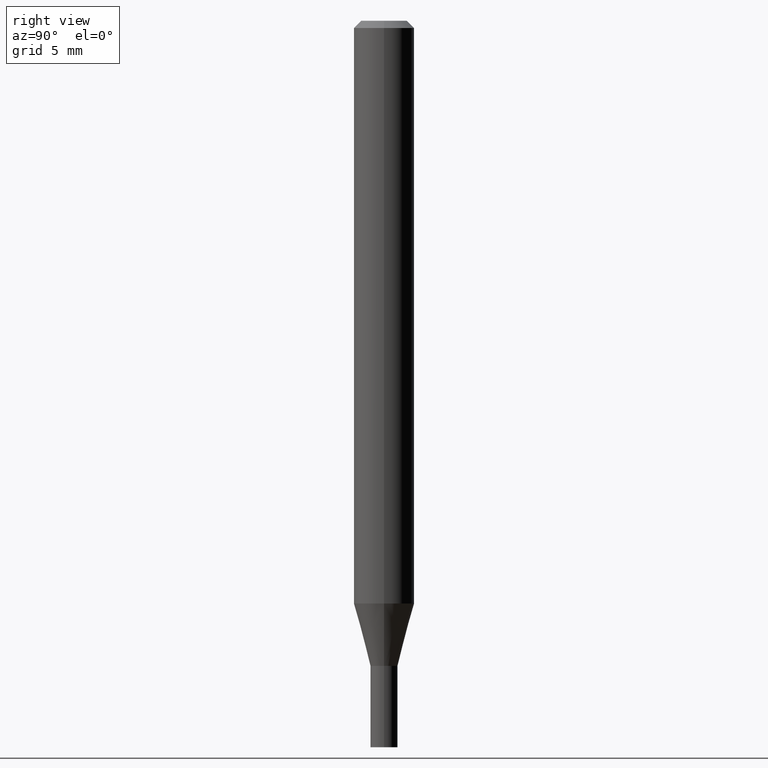
[diagram: clean part render]
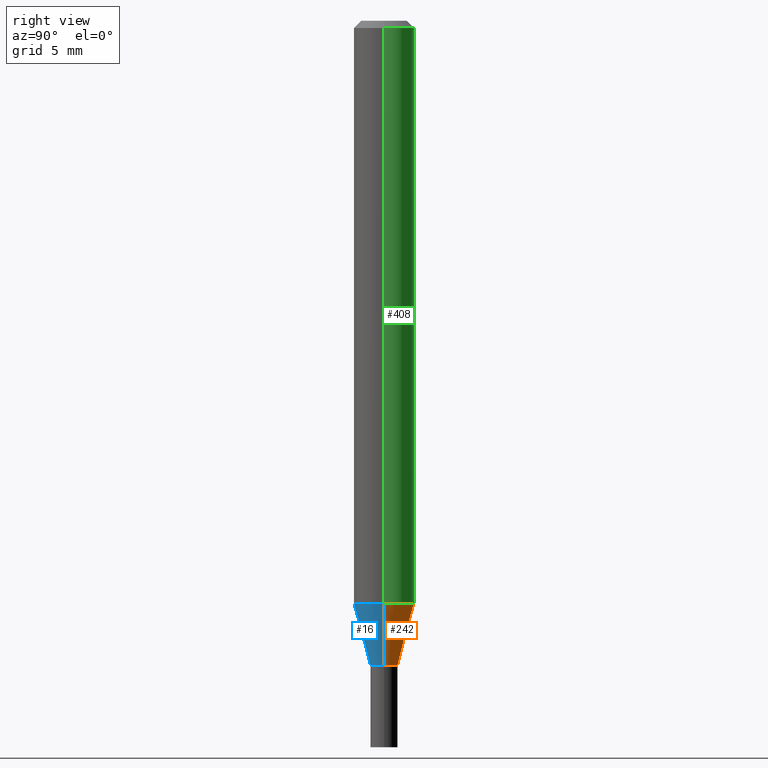
[diagram: same view with three faces highlighted in distinct colors, each labeled with its STEP entity id]
A machine part, right view with three faces highlighted in distinct colors.
Their STEP definitions:

[orange] entity #242 — the highlighted conical surface has half-angle 15 deg.
#4 = ORIENTED_EDGE ( 'NONE', *, *, #207, .F. ) ;
#17 = VERTEX_POINT ( 'NONE', #357 ) ;
#19 = AXIS2_PLACEMENT_3D ( 'NONE', #183, #156, #114 ) ;
#25 = CIRCLE ( 'NONE', #458, 0.02800000000000019487 ) ;
#26 = LINE ( 'NONE', #164, #307 ) ;
#83 = DIRECTION ( 'NONE',  ( 1.000000000000000000, -6.982962677686284065E-15, 0.000000000000000000 ) ) ;
#97 = FACE_OUTER_BOUND ( 'NONE', #119, .T. ) ;
#114 = DIRECTION ( 'NONE',  ( 1.000000000000000000, -6.982962677686270655E-15, 0.000000000000000000 ) ) ;
#118 = DIRECTION ( 'NONE',  ( -0.2588190451025214611, 5.211531920934550253E-15, 0.9659258262890679791 ) ) ;
#119 = EDGE_LOOP ( 'NONE', ( #127, #248, #385, #4 ) ) ;
#122 = CARTESIAN_POINT ( 'NONE',  ( -0.02800000000000019487, -4.451701177326241083E-15, -1.332000000000000073 ) ) ;
#127 = ORIENTED_EDGE ( 'NONE', *, *, #423, .T. ) ;
#150 = VERTEX_POINT ( 'NONE', #449 ) ;
#154 = CARTESIAN_POINT ( 'NONE',  ( 0.02800000000000019487, -4.846176098314287967E-15, -1.332000000000000073 ) ) ;
#156 = DIRECTION ( 'NONE',  ( -2.445468806185136597E-29, 3.491481338843145583E-15, 1.000000000000000000 ) ) ;
#159 = VERTEX_POINT ( 'NONE', #238 ) ;
#164 = CARTESIAN_POINT ( 'NONE',  ( 0.02800000000000019487, -4.846176098314287967E-15, -1.332000000000000073 ) ) ;
#183 = CARTESIAN_POINT ( 'NONE',  ( 2.942496272599838320E-29, -4.201104834955752285E-15, -1.203244247138874901 ) ) ;
#186 = CIRCLE ( 'NONE', #19, 0.06250000000000000000 ) ;
#201 = DIRECTION ( 'NONE',  ( 0.2588190451025214611, 1.565188264969620982E-15, 0.9659258262890679791 ) ) ;
#207 = EDGE_CURVE ( 'NONE', #352, #17, #26, .T. ) ;
#220 = CARTESIAN_POINT ( 'NONE',  ( 3.257364449838602072E-29, -4.650653143339070101E-15, -1.332000000000000073 ) ) ;
#227 = CONICAL_SURFACE ( 'NONE', #287, 0.02800000000000019487, 0.2617993877991501850 ) ;
#228 = LINE ( 'NONE', #122, #386 ) ;
#235 = CARTESIAN_POINT ( 'NONE',  ( 3.257364449838602072E-29, -4.650653143339070101E-15, -1.332000000000000073 ) ) ;
#238 = CARTESIAN_POINT ( 'NONE',  ( -0.06250000000000000000, -3.757015625105688880E-15, -1.203244247138874901 ) ) ;
#242 = ADVANCED_FACE ( 'NONE', ( #97 ), #227, .T. ) ;
#248 = ORIENTED_EDGE ( 'NONE', *, *, #394, .T. ) ;
#258 = DIRECTION ( 'NONE',  ( -2.445468806185136597E-29, 3.491481338843145583E-15, 1.000000000000000000 ) ) ;
#287 = AXIS2_PLACEMENT_3D ( 'NONE', #235, #371, #306 ) ;
#306 = DIRECTION ( 'NONE',  ( 1.000000000000000000, -6.982962677686284065E-15, 0.000000000000000000 ) ) ;
#307 = VECTOR ( 'NONE', #201, 39.37007874015748143 ) ;
#352 = VERTEX_POINT ( 'NONE', #154 ) ;
#357 = CARTESIAN_POINT ( 'NONE',  ( 0.06250000000000000000, -4.637540002311143955E-15, -1.203244247138874901 ) ) ;
#371 = DIRECTION ( 'NONE',  ( -2.445468806185136597E-29, 3.491481338843145583E-15, 1.000000000000000000 ) ) ;
#385 = ORIENTED_EDGE ( 'NONE', *, *, #427, .F. ) ;
#386 = VECTOR ( 'NONE', #118, 39.37007874015748143 ) ;
#394 = EDGE_CURVE ( 'NONE', #150, #159, #228, .T. ) ;
#423 = EDGE_CURVE ( 'NONE', #352, #150, #25, .T. ) ;
#427 = EDGE_CURVE ( 'NONE', #17, #159, #186, .T. ) ;
#449 = CARTESIAN_POINT ( 'NONE',  ( -0.02800000000000019487, -4.104358401215964982E-15, -1.332000000000000073 ) ) ;
#458 = AXIS2_PLACEMENT_3D ( 'NONE', #220, #258, #83 ) ;

[blue] entity #16 — the highlighted conical surface has half-angle 15 deg.
#16 = ADVANCED_FACE ( 'NONE', ( #56 ), #79, .T. ) ;
#17 = VERTEX_POINT ( 'NONE', #357 ) ;
#26 = LINE ( 'NONE', #164, #307 ) ;
#56 = FACE_OUTER_BOUND ( 'NONE', #163, .T. ) ;
#59 = CARTESIAN_POINT ( 'NONE',  ( 3.257364449838602072E-29, -4.650653143339070101E-15, -1.332000000000000073 ) ) ;
#66 = DIRECTION ( 'NONE',  ( -2.445468806185136597E-29, 3.491481338843145583E-15, 1.000000000000000000 ) ) ;
#73 = CIRCLE ( 'NONE', #132, 0.06250000000000000000 ) ;
#79 = CONICAL_SURFACE ( 'NONE', #200, 0.02800000000000019487, 0.2617993877991501850 ) ;
#118 = DIRECTION ( 'NONE',  ( -0.2588190451025214611, 5.211531920934550253E-15, 0.9659258262890679791 ) ) ;
#122 = CARTESIAN_POINT ( 'NONE',  ( -0.02800000000000019487, -4.451701177326241083E-15, -1.332000000000000073 ) ) ;
#124 = ORIENTED_EDGE ( 'NONE', *, *, #300, .F. ) ;
#132 = AXIS2_PLACEMENT_3D ( 'NONE', #375, #66, #338 ) ;
#150 = VERTEX_POINT ( 'NONE', #449 ) ;
#154 = CARTESIAN_POINT ( 'NONE',  ( 0.02800000000000019487, -4.846176098314287967E-15, -1.332000000000000073 ) ) ;
#159 = VERTEX_POINT ( 'NONE', #238 ) ;
#163 = EDGE_LOOP ( 'NONE', ( #226, #185, #188, #124 ) ) ;
#164 = CARTESIAN_POINT ( 'NONE',  ( 0.02800000000000019487, -4.846176098314287967E-15, -1.332000000000000073 ) ) ;
#181 = EDGE_CURVE ( 'NONE', #150, #352, #431, .T. ) ;
#185 = ORIENTED_EDGE ( 'NONE', *, *, #181, .T. ) ;
#188 = ORIENTED_EDGE ( 'NONE', *, *, #207, .T. ) ;
#193 = DIRECTION ( 'NONE',  ( 1.000000000000000000, -6.982962677686284065E-15, 0.000000000000000000 ) ) ;
#200 = AXIS2_PLACEMENT_3D ( 'NONE', #294, #448, #354 ) ;
#201 = DIRECTION ( 'NONE',  ( 0.2588190451025214611, 1.565188264969620982E-15, 0.9659258262890679791 ) ) ;
#207 = EDGE_CURVE ( 'NONE', #352, #17, #26, .T. ) ;
#226 = ORIENTED_EDGE ( 'NONE', *, *, #394, .F. ) ;
#228 = LINE ( 'NONE', #122, #386 ) ;
#238 = CARTESIAN_POINT ( 'NONE',  ( -0.06250000000000000000, -3.757015625105688880E-15, -1.203244247138874901 ) ) ;
#294 = CARTESIAN_POINT ( 'NONE',  ( 3.257364449838602072E-29, -4.650653143339070101E-15, -1.332000000000000073 ) ) ;
#295 = AXIS2_PLACEMENT_3D ( 'NONE', #59, #335, #193 ) ;
#300 = EDGE_CURVE ( 'NONE', #159, #17, #73, .T. ) ;
#307 = VECTOR ( 'NONE', #201, 39.37007874015748143 ) ;
#335 = DIRECTION ( 'NONE',  ( -2.445468806185136597E-29, 3.491481338843145583E-15, 1.000000000000000000 ) ) ;
#338 = DIRECTION ( 'NONE',  ( 1.000000000000000000, -6.982962677686270655E-15, 0.000000000000000000 ) ) ;
#352 = VERTEX_POINT ( 'NONE', #154 ) ;
#354 = DIRECTION ( 'NONE',  ( 1.000000000000000000, -6.982962677686284065E-15, 0.000000000000000000 ) ) ;
#357 = CARTESIAN_POINT ( 'NONE',  ( 0.06250000000000000000, -4.637540002311143955E-15, -1.203244247138874901 ) ) ;
#375 = CARTESIAN_POINT ( 'NONE',  ( 2.942496272599838320E-29, -4.201104834955752285E-15, -1.203244247138874901 ) ) ;
#386 = VECTOR ( 'NONE', #118, 39.37007874015748143 ) ;
#394 = EDGE_CURVE ( 'NONE', #150, #159, #228, .T. ) ;
#431 = CIRCLE ( 'NONE', #295, 0.02800000000000019487 ) ;
#448 = DIRECTION ( 'NONE',  ( -2.445468806185136597E-29, 3.491481338843145583E-15, 1.000000000000000000 ) ) ;
#449 = CARTESIAN_POINT ( 'NONE',  ( -0.02800000000000019487, -4.104358401215964982E-15, -1.332000000000000073 ) ) ;

[green] entity #408 — the highlighted cylindrical surface (edge-blend (fillet) strip) has radius 1.5875 mm, axis along (-0, 0, 1).
#17 = VERTEX_POINT ( 'NONE', #357 ) ;
#19 = AXIS2_PLACEMENT_3D ( 'NONE', #183, #156, #114 ) ;
#44 = ORIENTED_EDGE ( 'NONE', *, *, #67, .T. ) ;
#57 = ORIENTED_EDGE ( 'NONE', *, *, #427, .T. ) ;
#67 = EDGE_CURVE ( 'NONE', #159, #157, #104, .T. ) ;
#91 = VERTEX_POINT ( 'NONE', #106 ) ;
#94 = CARTESIAN_POINT ( 'NONE',  ( 0.06250000000000000000, -4.364351673553916694E-16, 3.047610484872459871E-30 ) ) ;
#104 = LINE ( 'NONE', #204, #359 ) ;
#106 = CARTESIAN_POINT ( 'NONE',  ( 0.06250000000000000000, -4.888073874380388472E-16, -0.01499999999999999944 ) ) ;
#114 = DIRECTION ( 'NONE',  ( 1.000000000000000000, -6.982962677686270655E-15, 0.000000000000000000 ) ) ;
#125 = CARTESIAN_POINT ( 'NONE',  ( 3.668203209277705088E-31, -5.237222008264718399E-17, -0.01499999999999999944 ) ) ;
#126 = DIRECTION ( 'NONE',  ( -2.445468806185136877E-29, 3.491481338843145188E-15, 1.000000000000000000 ) ) ;
#141 = DIRECTION ( 'NONE',  ( -2.445468806185136877E-29, 3.491481338843145188E-15, 1.000000000000000000 ) ) ;
#156 = DIRECTION ( 'NONE',  ( -2.445468806185136597E-29, 3.491481338843145583E-15, 1.000000000000000000 ) ) ;
#157 = VERTEX_POINT ( 'NONE', #303 ) ;
#159 = VERTEX_POINT ( 'NONE', #238 ) ;
#177 = EDGE_CURVE ( 'NONE', #91, #157, #240, .T. ) ;
#183 = CARTESIAN_POINT ( 'NONE',  ( 2.942496272599838320E-29, -4.201104834955752285E-15, -1.203244247138874901 ) ) ;
#186 = CIRCLE ( 'NONE', #19, 0.06250000000000000000 ) ;
#187 = DIRECTION ( 'NONE',  ( 1.000000000000000000, -6.982962677686266711E-15, 4.876176775795935793E-29 ) ) ;
#204 = CARTESIAN_POINT ( 'NONE',  ( -0.06250000000000000000, 4.440892098500626162E-16, -3.074334431409316114E-30 ) ) ;
#233 = DIRECTION ( 'NONE',  ( 1.000000000000000000, -6.982962677686266711E-15, 0.000000000000000000 ) ) ;
#234 = LINE ( 'NONE', #94, #288 ) ;
#238 = CARTESIAN_POINT ( 'NONE',  ( -0.06250000000000000000, -3.757015625105688880E-15, -1.203244247138874901 ) ) ;
#240 = CIRCLE ( 'NONE', #452, 0.06250000000000000000 ) ;
#245 = EDGE_LOOP ( 'NONE', ( #57, #44, #434, #289 ) ) ;
#288 = VECTOR ( 'NONE', #126, 39.37007874015748143 ) ;
#289 = ORIENTED_EDGE ( 'NONE', *, *, #321, .F. ) ;
#303 = CARTESIAN_POINT ( 'NONE',  ( -0.06250000000000000000, -1.682649317669137066E-15, -0.01499999999999999944 ) ) ;
#321 = EDGE_CURVE ( 'NONE', #17, #91, #234, .T. ) ;
#326 = AXIS2_PLACEMENT_3D ( 'NONE', #347, #437, #187 ) ;
#327 = DIRECTION ( 'NONE',  ( -2.445468806185136597E-29, 3.491481338843145583E-15, 1.000000000000000000 ) ) ;
#347 = CARTESIAN_POINT ( 'NONE',  ( 0.000000000000000000, 0.000000000000000000, 0.000000000000000000 ) ) ;
#356 = FACE_OUTER_BOUND ( 'NONE', #245, .T. ) ;
#357 = CARTESIAN_POINT ( 'NONE',  ( 0.06250000000000000000, -4.637540002311143955E-15, -1.203244247138874901 ) ) ;
#358 = CYLINDRICAL_SURFACE ( 'NONE', #326, 0.06250000000000000000 ) ;
#359 = VECTOR ( 'NONE', #141, 39.37007874015748143 ) ;
#408 = ADVANCED_FACE ( 'NONE', ( #356 ), #358, .T. ) ;
#427 = EDGE_CURVE ( 'NONE', #17, #159, #186, .T. ) ;
#434 = ORIENTED_EDGE ( 'NONE', *, *, #177, .F. ) ;
#437 = DIRECTION ( 'NONE',  ( -2.445468806185136597E-29, 3.491481338843145583E-15, 1.000000000000000000 ) ) ;
#452 = AXIS2_PLACEMENT_3D ( 'NONE', #125, #327, #233 ) ;